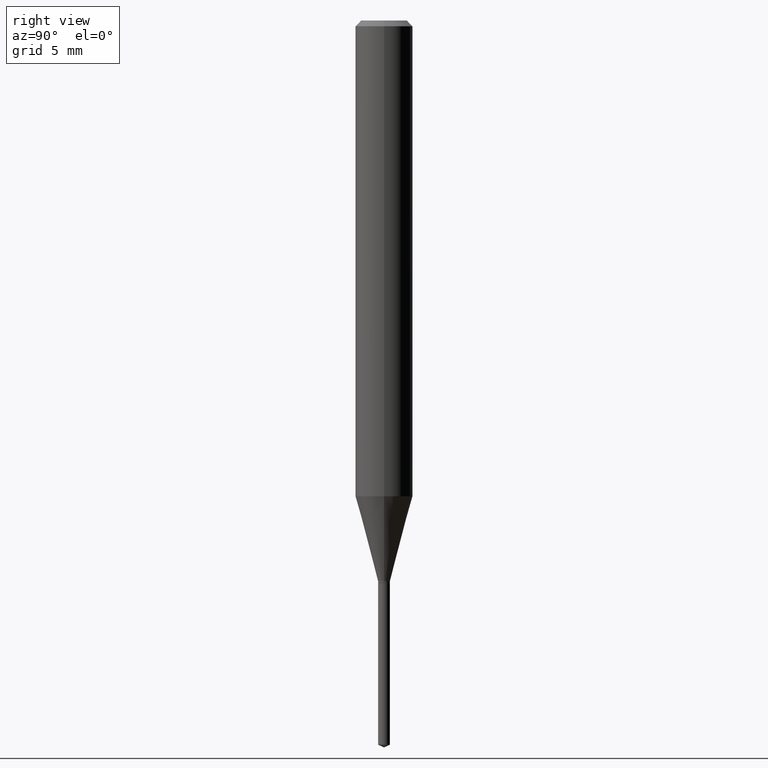
[diagram: clean part render]
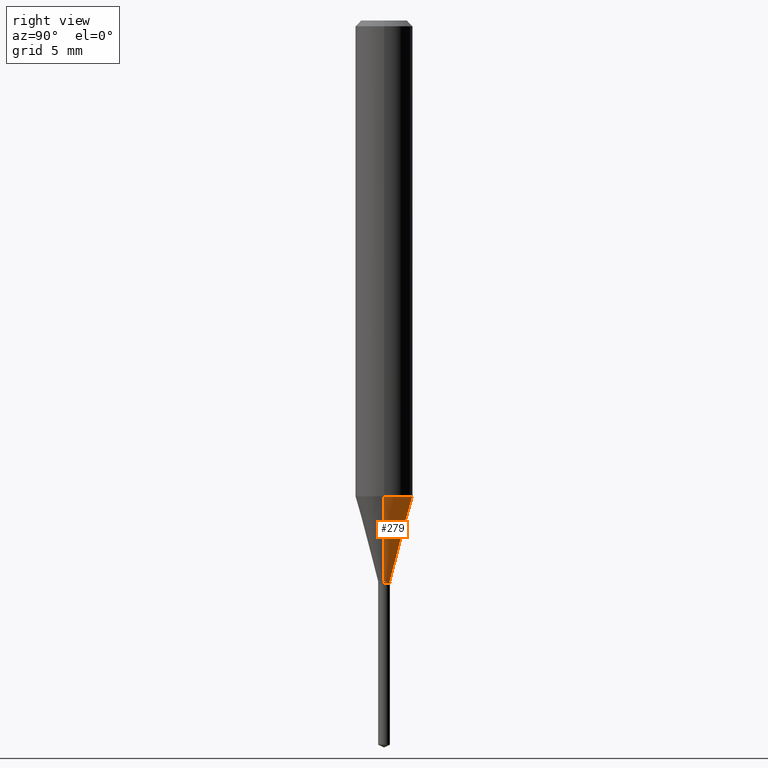
[diagram: same view with one face highlighted and labeled with its STEP entity id]
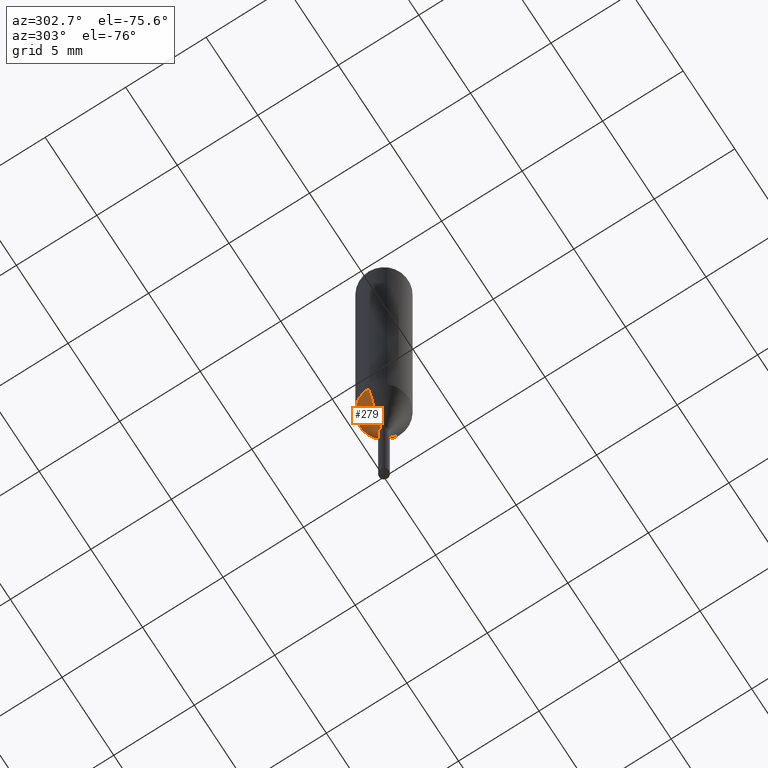
[diagram: same view with one face highlighted and labeled with its STEP entity id]
A machine part, right view. The second image highlights one B-rep face of the part: STEP entity #279.
A second angle (auxiliary view) of the same face is appended — the face is thin or edge-on in the first view.
In plain terms, the highlighted conical surface has half-angle 15 deg.
Its self-contained STEP definition (entity closure, byte-faithful):
#12 = CARTESIAN_POINT ( 'NONE',  ( 2.821581908576410135E-29, -4.028471168757220985E-15, -1.153799999999999937 ) ) ;
#18 = DIRECTION ( 'NONE',  ( 1.000000000000000000, -6.982962677686284854E-15, 0.000000000000000000 ) ) ;
#20 = CARTESIAN_POINT ( 'NONE',  ( -0.01220000000000000077, -3.941784954994488843E-15, -1.153799999999999937 ) ) ;
#38 = LINE ( 'NONE', #310, #371 ) ;
#56 = DIRECTION ( 'NONE',  ( -2.445468806185136597E-29, 3.491481338843145583E-15, 1.000000000000000000 ) ) ;
#57 = DIRECTION ( 'NONE',  ( -2.445468806185136597E-29, 3.491481338843145583E-15, 1.000000000000000000 ) ) ;
#75 = EDGE_CURVE ( 'NONE', #375, #172, #419, .T. ) ;
#83 = DIRECTION ( 'NONE',  ( 0.2588190451025211836, 1.565188264969622559E-15, 0.9659258262890679791 ) ) ;
#94 = LINE ( 'NONE', #20, #231 ) ;
#115 = AXIS2_PLACEMENT_3D ( 'NONE', #463, #377, #428 ) ;
#130 = EDGE_CURVE ( 'NONE', #397, #375, #38, .T. ) ;
#139 = ORIENTED_EDGE ( 'NONE', *, *, #130, .F. ) ;
#141 = ORIENTED_EDGE ( 'NONE', *, *, #225, .T. ) ;
#144 = AXIS2_PLACEMENT_3D ( 'NONE', #472, #57, #18 ) ;
#167 = DIRECTION ( 'NONE',  ( 1.000000000000000000, -6.982962677686284854E-15, 0.000000000000000000 ) ) ;
#172 = VERTEX_POINT ( 'NONE', #360 ) ;
#205 = EDGE_CURVE ( 'NONE', #370, #172, #94, .T. ) ;
#225 = EDGE_CURVE ( 'NONE', #397, #370, #338, .T. ) ;
#231 = VECTOR ( 'NONE', #322, 39.37007874015748854 ) ;
#245 = FACE_OUTER_BOUND ( 'NONE', #329, .T. ) ;
#279 = ADVANCED_FACE ( 'NONE', ( #245 ), #292, .T. ) ;
#292 = CONICAL_SURFACE ( 'NONE', #429, 0.01220000000000000077, 0.2617993877991499074 ) ;
#293 = CARTESIAN_POINT ( 'NONE',  ( -0.01220000000000000077, -3.947371325136637655E-15, -1.153799999999999937 ) ) ;
#310 = CARTESIAN_POINT ( 'NONE',  ( 0.01220000000000000077, -4.113663313424993515E-15, -1.153799999999999937 ) ) ;
#322 = DIRECTION ( 'NONE',  ( -0.2588190451025211836, 5.211531920934547886E-15, 0.9659258262890679791 ) ) ;
#329 = EDGE_LOOP ( 'NONE', ( #141, #473, #476, #139 ) ) ;
#332 = CARTESIAN_POINT ( 'NONE',  ( 0.05905000000000013016, -3.830341542475794546E-15, -0.9789534196653978393 ) ) ;
#338 = CIRCLE ( 'NONE', #144, 0.01220000000000000077 ) ;
#360 = CARTESIAN_POINT ( 'NONE',  ( -0.05905000000000013016, -2.998422110892078950E-15, -0.9789534196653978393 ) ) ;
#370 = VERTEX_POINT ( 'NONE', #293 ) ;
#371 = VECTOR ( 'NONE', #83, 39.37007874015748854 ) ;
#375 = VERTEX_POINT ( 'NONE', #332 ) ;
#377 = DIRECTION ( 'NONE',  ( -2.445468806185136597E-29, 3.491481338843145583E-15, 1.000000000000000000 ) ) ;
#397 = VERTEX_POINT ( 'NONE', #442 ) ;
#419 = CIRCLE ( 'NONE', #115, 0.05905000000000013016 ) ;
#428 = DIRECTION ( 'NONE',  ( 1.000000000000000000, -6.982962677686265133E-15, 0.000000000000000000 ) ) ;
#429 = AXIS2_PLACEMENT_3D ( 'NONE', #12, #56, #167 ) ;
#442 = CARTESIAN_POINT ( 'NONE',  ( 0.01220000000000000077, -4.113663313424993515E-15, -1.153799999999999937 ) ) ;
#463 = CARTESIAN_POINT ( 'NONE',  ( 2.394000050499997452E-29, -3.417997596358418837E-15, -0.9789534196653978393 ) ) ;
#472 = CARTESIAN_POINT ( 'NONE',  ( 2.821581908576410135E-29, -4.028471168757220985E-15, -1.153799999999999937 ) ) ;
#473 = ORIENTED_EDGE ( 'NONE', *, *, #205, .T. ) ;
#476 = ORIENTED_EDGE ( 'NONE', *, *, #75, .F. ) ;